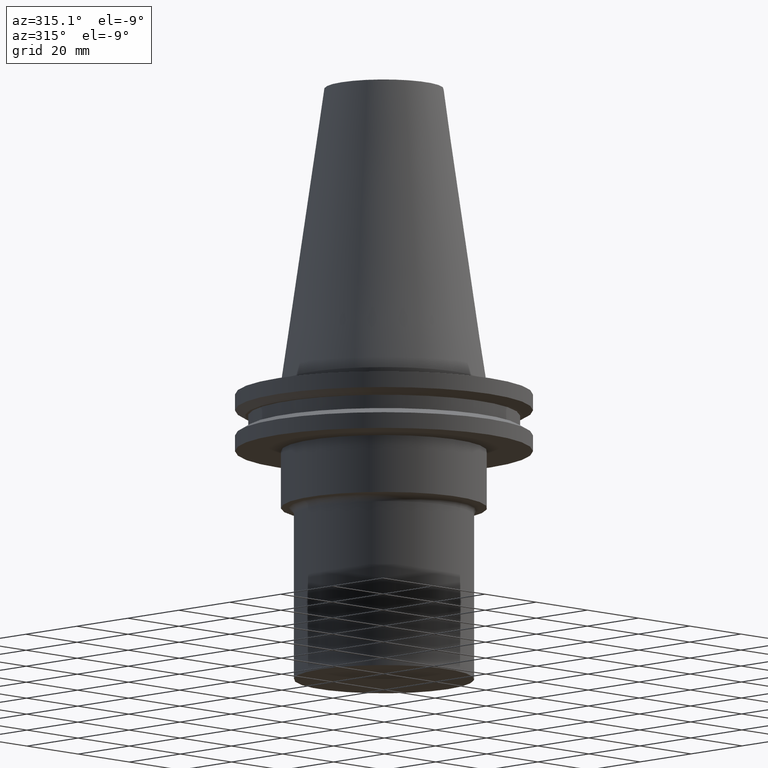
[diagram: clean part render]
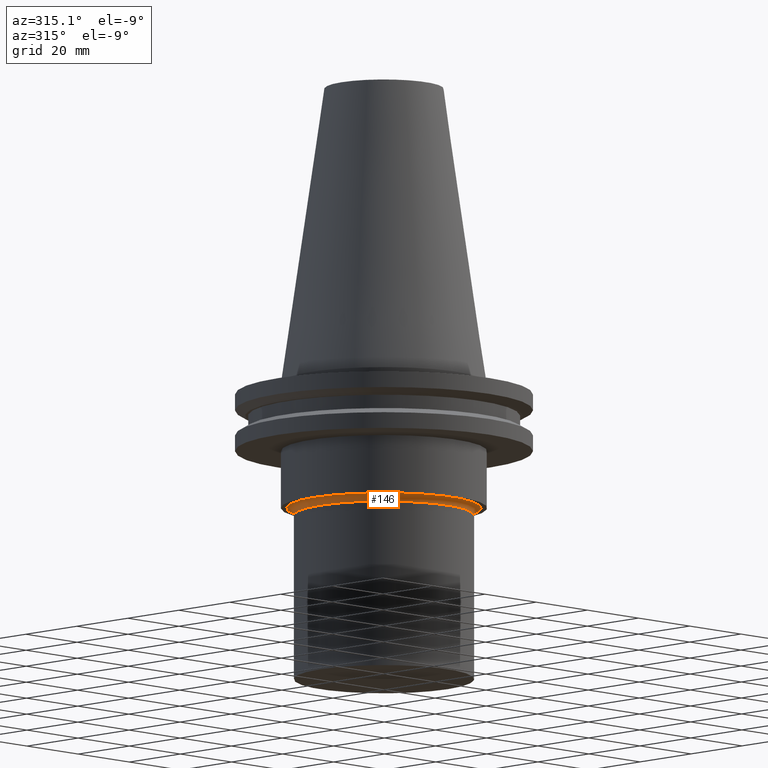
[diagram: same view with one face highlighted and labeled with its STEP entity id]
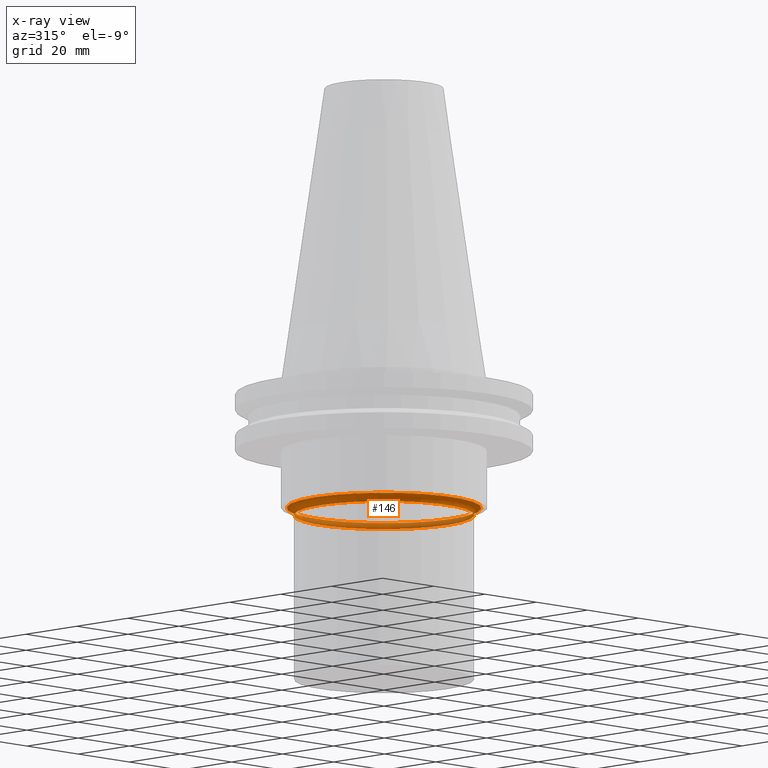
[diagram: x-ray of the same camera — body ghosted, the highlighted face saturated]
A machine part, auxiliary view. The second image highlights one B-rep face of the part: STEP entity #146.
The next image is the same camera in x-ray: the body ghosted, the highlighted face saturated — about 35% of this face is hidden behind the body in this view.
In plain terms, the highlighted toroidal blend (fillet) surface has major radius 27 mm and minor (blend) radius 2 mm.
Its self-contained STEP definition (entity closure, byte-faithful):
#3 = CARTESIAN_POINT ( 'NONE',  ( 0.000000000000000000, 0.000000000000000000, -37.00000000000000711 ) ) ;
#7 = TOROIDAL_SURFACE ( 'NONE', #71, 27.00000000000000355, 2.000000000000000000 ) ;
#28 = ORIENTED_EDGE ( 'NONE', *, *, #61, .F. ) ;
#29 = CIRCLE ( 'NONE', #331, 25.00000000000000355 ) ;
#47 = ORIENTED_EDGE ( 'NONE', *, *, #338, .T. ) ;
#60 = EDGE_LOOP ( 'NONE', ( #47 ) ) ;
#61 = EDGE_CURVE ( 'NONE', #116, #116, #117, .T. ) ;
#62 = CARTESIAN_POINT ( 'NONE',  ( 0.000000000000000000, 0.000000000000000000, -35.00000000000000000 ) ) ;
#70 = FACE_OUTER_BOUND ( 'NONE', #60, .T. ) ;
#71 = AXIS2_PLACEMENT_3D ( 'NONE', #3, #354, #164 ) ;
#72 = FACE_OUTER_BOUND ( 'NONE', #93, .T. ) ;
#79 = CARTESIAN_POINT ( 'NONE',  ( 0.000000000000000000, 0.000000000000000000, -37.00000000000000711 ) ) ;
#83 = VERTEX_POINT ( 'NONE', #209 ) ;
#93 = EDGE_LOOP ( 'NONE', ( #28 ) ) ;
#113 = DIRECTION ( 'NONE',  ( 1.000000000000000000, 0.000000000000000000, 0.000000000000000000 ) ) ;
#116 = VERTEX_POINT ( 'NONE', #242 ) ;
#117 = CIRCLE ( 'NONE', #155, 27.00000000000000355 ) ;
#146 = ADVANCED_FACE ( 'NONE', ( #72, #70 ), #7, .F. ) ;
#155 = AXIS2_PLACEMENT_3D ( 'NONE', #62, #157, #221 ) ;
#157 = DIRECTION ( 'NONE',  ( -0.000000000000000000, -0.000000000000000000, 1.000000000000000000 ) ) ;
#164 = DIRECTION ( 'NONE',  ( 1.000000000000000000, 0.000000000000000000, 0.000000000000000000 ) ) ;
#209 = CARTESIAN_POINT ( 'NONE',  ( 25.00000000000000355, 0.000000000000000000, -37.00000000000000711 ) ) ;
#221 = DIRECTION ( 'NONE',  ( 1.000000000000000000, 0.000000000000000000, 0.000000000000000000 ) ) ;
#242 = CARTESIAN_POINT ( 'NONE',  ( 27.00000000000000355, 0.000000000000000000, -35.00000000000000000 ) ) ;
#331 = AXIS2_PLACEMENT_3D ( 'NONE', #79, #336, #113 ) ;
#336 = DIRECTION ( 'NONE',  ( -0.000000000000000000, -0.000000000000000000, 1.000000000000000000 ) ) ;
#338 = EDGE_CURVE ( 'NONE', #83, #83, #29, .T. ) ;
#354 = DIRECTION ( 'NONE',  ( -0.000000000000000000, -0.000000000000000000, 1.000000000000000000 ) ) ;